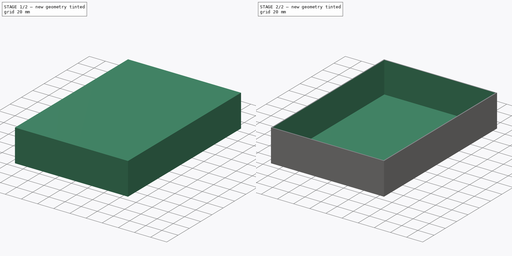
[diagram: build sequence overview — one tinted view per stage of 2, left to right]
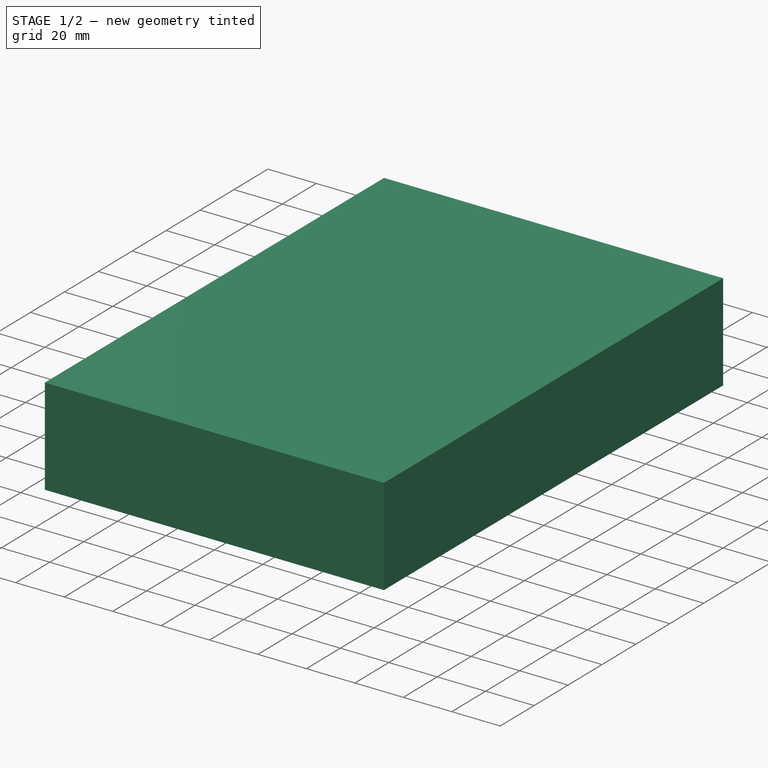
[diagram: stage 1 of 2 — iso view after this stage's code; geometry added in this stage tinted green]
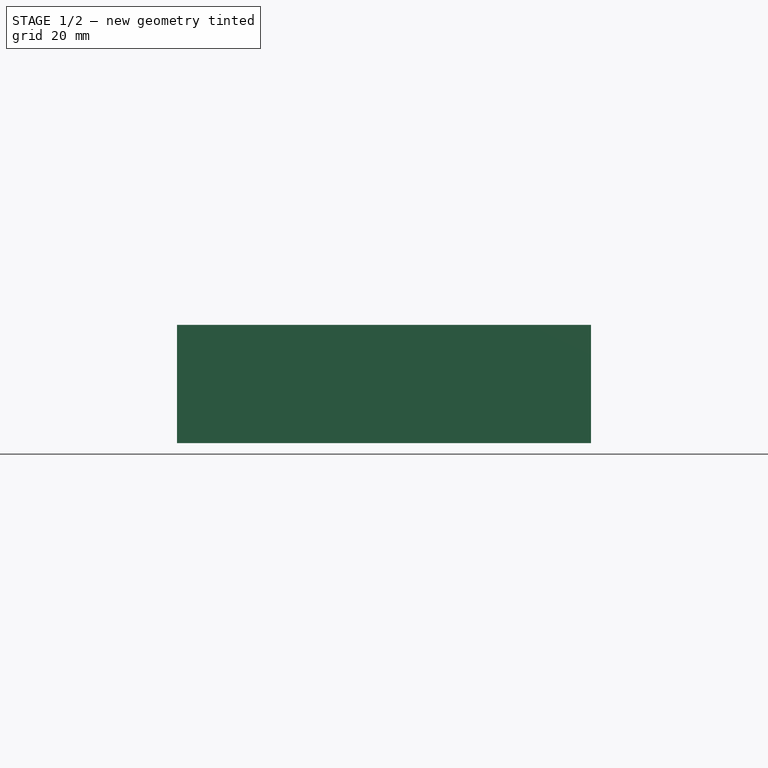
[diagram: stage 1 of 2 — front view after this stage's code; geometry added in this stage tinted green]
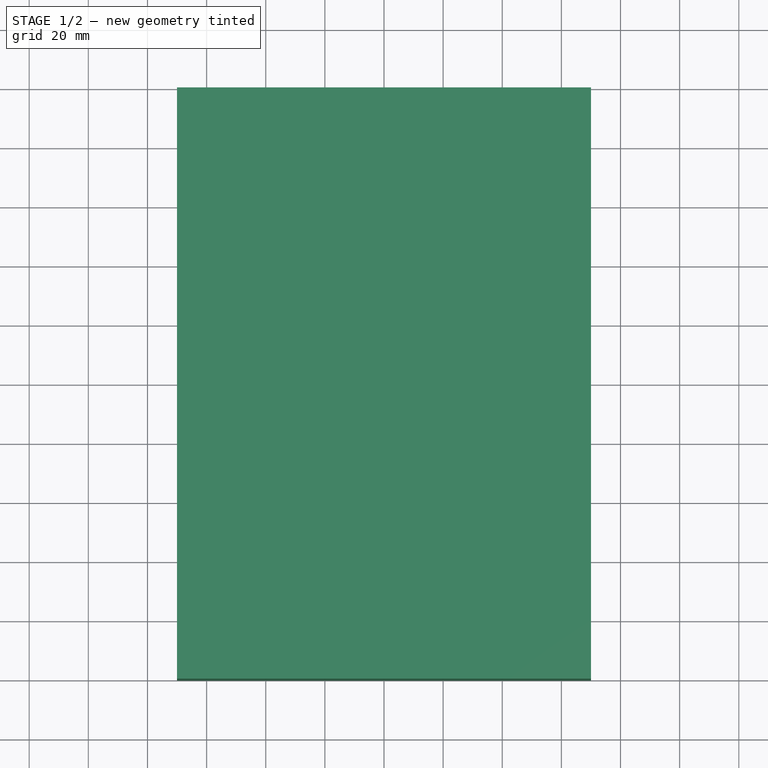
[diagram: stage 1 of 2 — top view after this stage's code; geometry added in this stage tinted green]
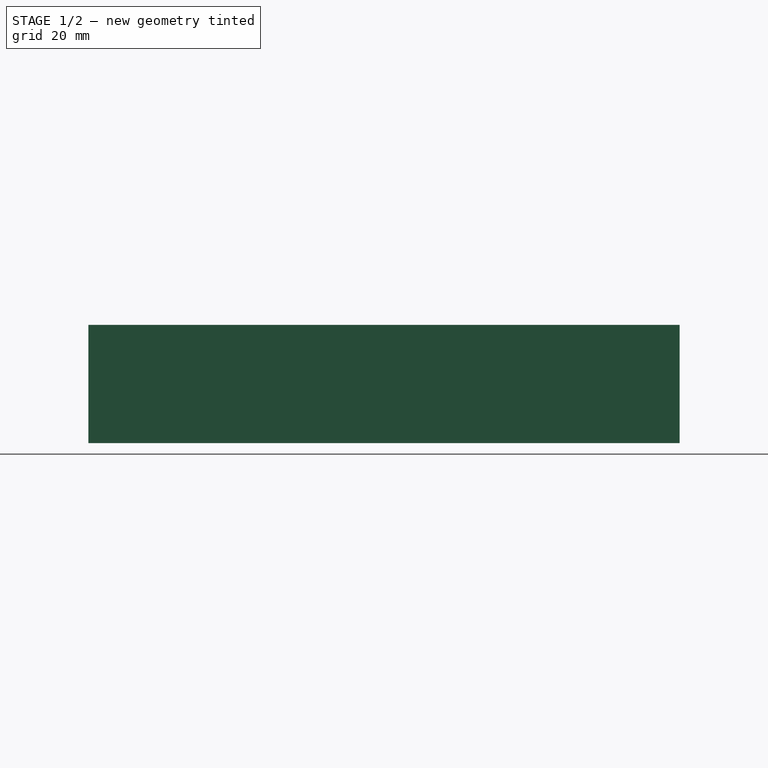
[diagram: stage 1 of 2 — right view after this stage's code; geometry added in this stage tinted green]
FCSTD DOCUMENT  (FreeCAD 0.20R29603 (Git))
Label: DisplayBox
License: All rights reserved
LicenseURL: http://en.wikipedia.org/wiki/All_rights_reserved
objects: Sketcher::SketchObject×2, PartDesign::Pad×1, Spreadsheet::Sheet×1, PartDesign::Plane×1, PartDesign::Pocket×1, PartDesign::Body×1
note: 8 computed .brp shape members not serialized (recipe doc carries the construction recipe); baked Part::Feature solids carry a one-line shape summary decoded from their .brp

FEATURE [Sketcher::SketchObject] Sketch
  FullyConstrained = true
  MapMode = 5
  Support = -> [XY_Plane]
  expr: Constraints[8] = <<Params>>.box_width_external
  expr: Constraints[9] = <<Params>>.box_length_external
  sketch-geometry (4):
    g0: LineSegment StartX=-70 StartY=100 StartZ=0 EndX=70 EndY=100 EndZ=0
    g1: LineSegment StartX=70 StartY=100 StartZ=0 EndX=70 EndY=-100 EndZ=0
    g2: LineSegment StartX=70 StartY=-100 StartZ=0 EndX=-70 EndY=-100 EndZ=0
    g3: LineSegment StartX=-70 StartY=-100 StartZ=0 EndX=-70 EndY=100 EndZ=0
  constraints (10):
    c: Coincident(g0,g1)
    c: Coincident(g1,g2)
    c: Coincident(g2,g3)
    c: Coincident(g3,g0)
    c: Horizontal(g2)
    c: Vertical(g1)
    c: Symmetric(g0,g2,g-1)
    c: Symmetric(g0,g0,g-2)
    c: DistanceX(g0,g0) = 140
    c: DistanceY(g1,g0) = 200
FEATURE [PartDesign::Pad] Pad  label="CorpoExterno"
  Direction = (0,0,1)
  Length = 40
  Length2 = 10
  Profile = -> Sketch
  ReferenceAxis = -> Sketch [N_Axis]
  Type = 0
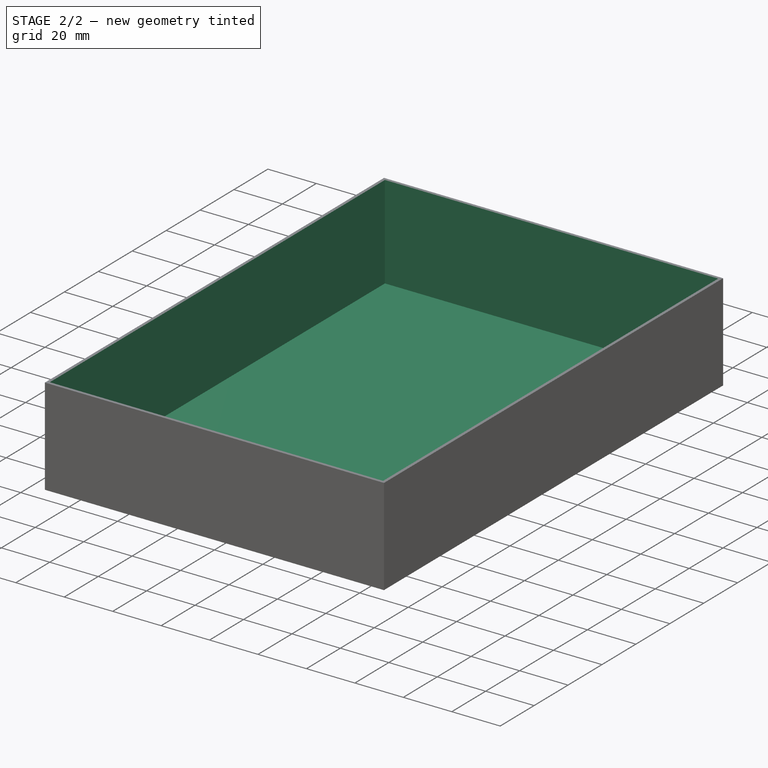
[diagram: stage 2 of 2 — iso view after this stage's code; geometry added in this stage tinted green]
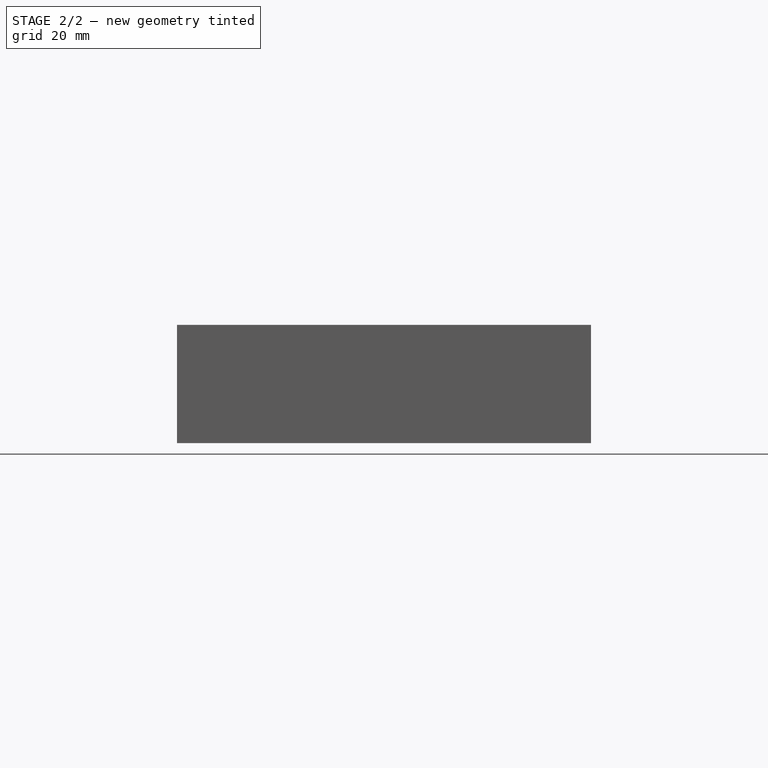
[diagram: stage 2 of 2 — front view after this stage's code; geometry added in this stage tinted green]
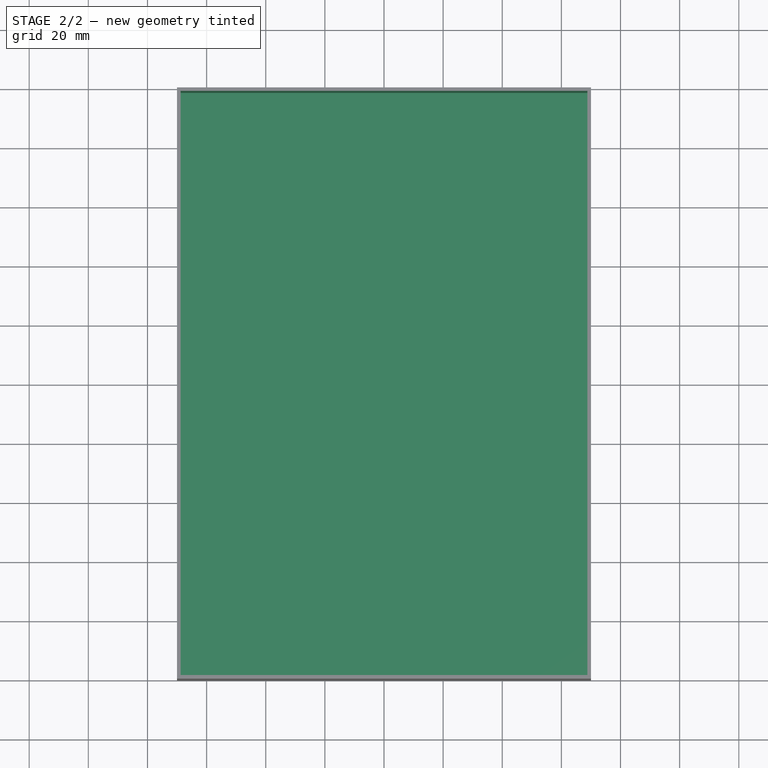
[diagram: stage 2 of 2 — top view after this stage's code; geometry added in this stage tinted green]
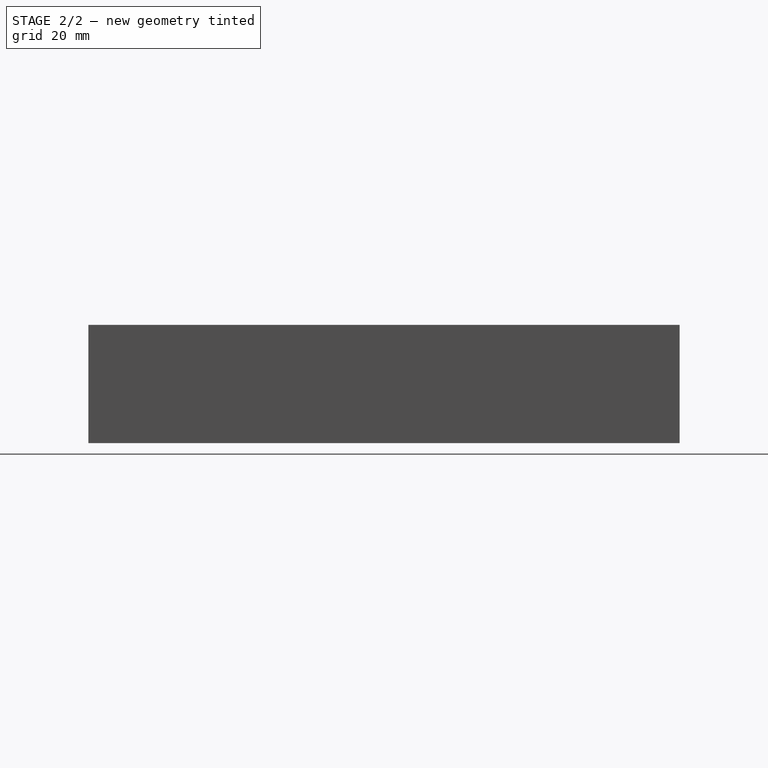
[diagram: stage 2 of 2 — right view after this stage's code; geometry added in this stage tinted green]
FEATURE [Spreadsheet::Sheet] Spreadsheet  label="Params"
  cells = B3=box_length_external; C3(box_length_external)=200; B4=box_width_external; C4(box_width_external)=140; B5=box_height_external; C5(box_height_external)=40; B6=box_height_shallow; C6(box_height_shallow)==C7 - 2; B7=box_height_deep; C7(box_height_deep)==C5 - 1.4; B8=box_length_internal; C8(box_length_internal)==C3 - 2 * C10; B9=box_width_internal; C9(box_width_internal)==C4 - 2 * C10; B10=box_wall_thickness; C10(box_wall_thickness)=1.2
FEATURE [PartDesign::Plane] DatumPlane
  Length = 173.466
  MapMode = 5
  Placement = pos=(0,0,40) rot=(0,0,1;0rad)
  ResizeMode = 0
  Support = -> [Pad]
  Width = 233.466
FEATURE [Sketcher::SketchObject] Sketch001
  FullyConstrained = true
  MapMode = 5
  Placement = pos=(0,0,40) rot=(0,0,1;0rad)
  Support = -> [DatumPlane]
  expr: Constraints[8] = <<Params>>.box_length_internal
  expr: Constraints[9] = <<Params>>.box_width_internal
  sketch-geometry (4):
    g0: LineSegment StartX=-68.8 StartY=98.8 StartZ=0 EndX=68.8 EndY=98.8 EndZ=0
    g1: LineSegment StartX=68.8 StartY=98.8 StartZ=0 EndX=68.8 EndY=-98.8 EndZ=0
    g2: LineSegment StartX=68.8 StartY=-98.8 StartZ=0 EndX=-68.8 EndY=-98.8 EndZ=0
    g3: LineSegment StartX=-68.8 StartY=-98.8 StartZ=0 EndX=-68.8 EndY=98.8 EndZ=0
  constraints (10):
    c: Coincident(g0,g1)
    c: Coincident(g1,g2)
    c: Coincident(g2,g3)
    c: Coincident(g3,g0)
    c: Horizontal(g2)
    c: Vertical(g1)
    c: Symmetric(g0,g2,g-1)
    c: Symmetric(g0,g0,g-2)
    c: DistanceY(g2,g0) = 197.6
    c: DistanceX(g2,g1) = 137.6
FEATURE [PartDesign::Pocket] Pocket  label="CavidadeInterna"
  BaseFeature = -> Pad
  Direction = (0,0,-1)
  Length = 38.6
  Length2 = 5
  Profile = -> Sketch001
  ReferenceAxis = -> Sketch001 [N_Axis]
  Type = 0
  expr: Length = <<Params>>.box_height_deep
FEATURE [PartDesign::Body] Body
  Group = -> [Sketch,Pad,DatumPlane,Sketch001,Pocket]
  Origin = -> Origin
  Tip = -> Pocket
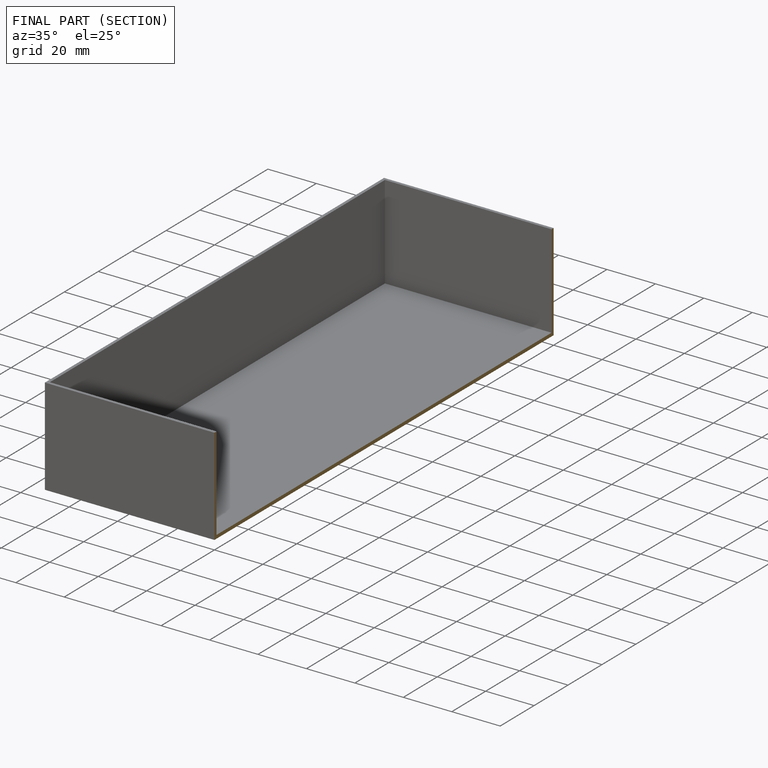
[diagram: finished part — half-section view (interior)]
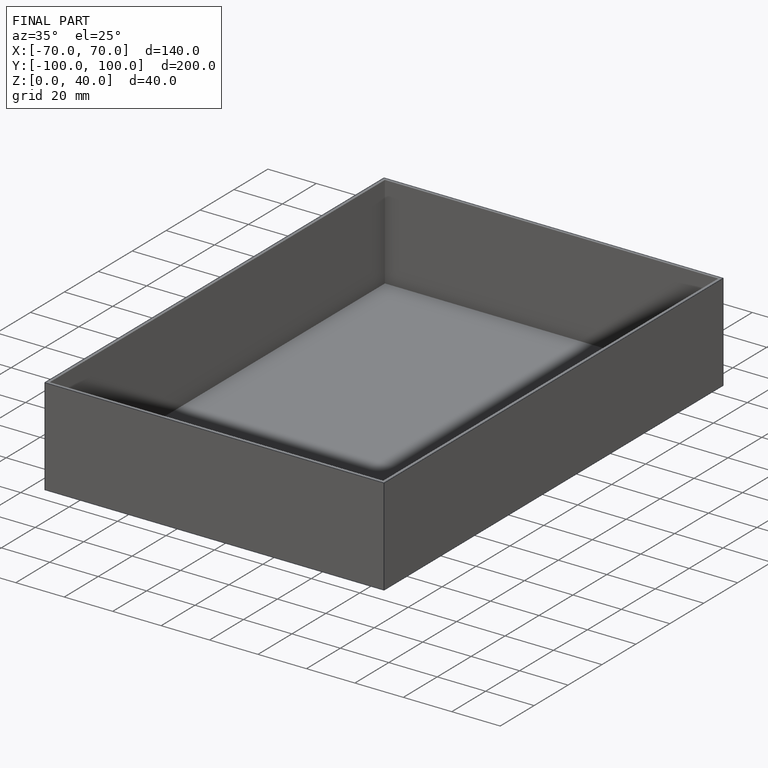
[diagram: finished part — iso view with bounding-box wireframe]
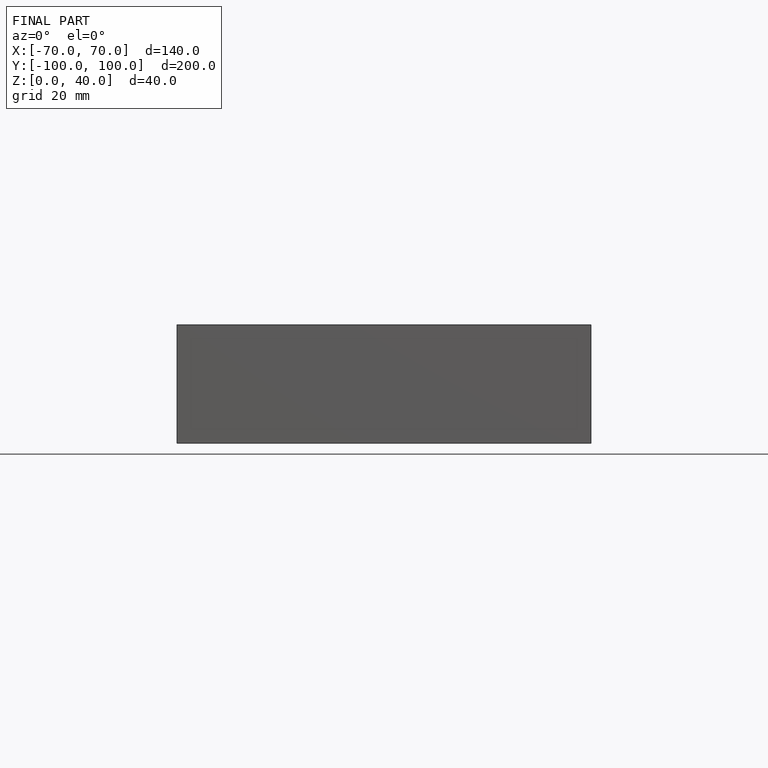
[diagram: finished part — front view with bounding-box wireframe]
